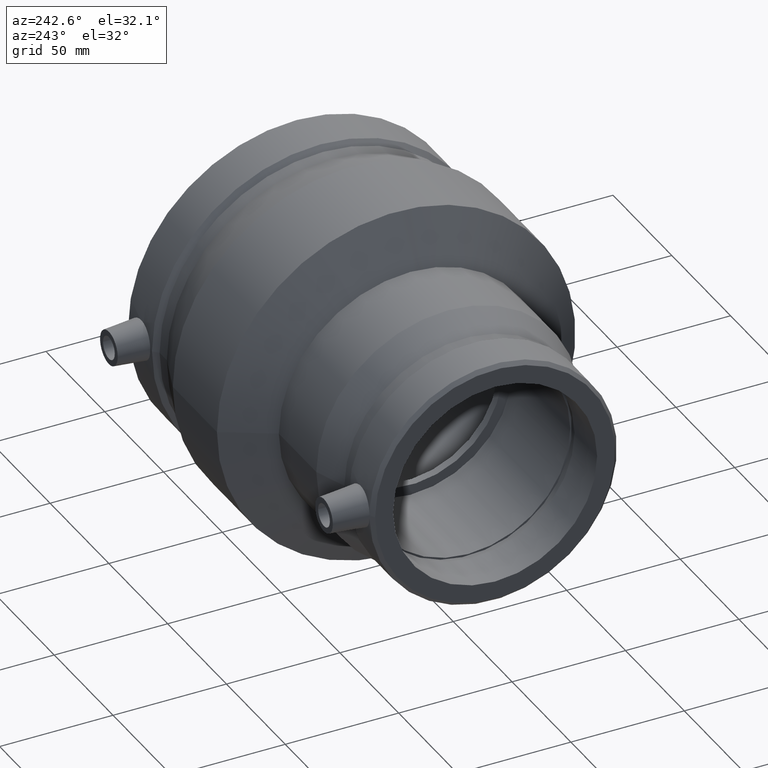
[diagram: clean part render]
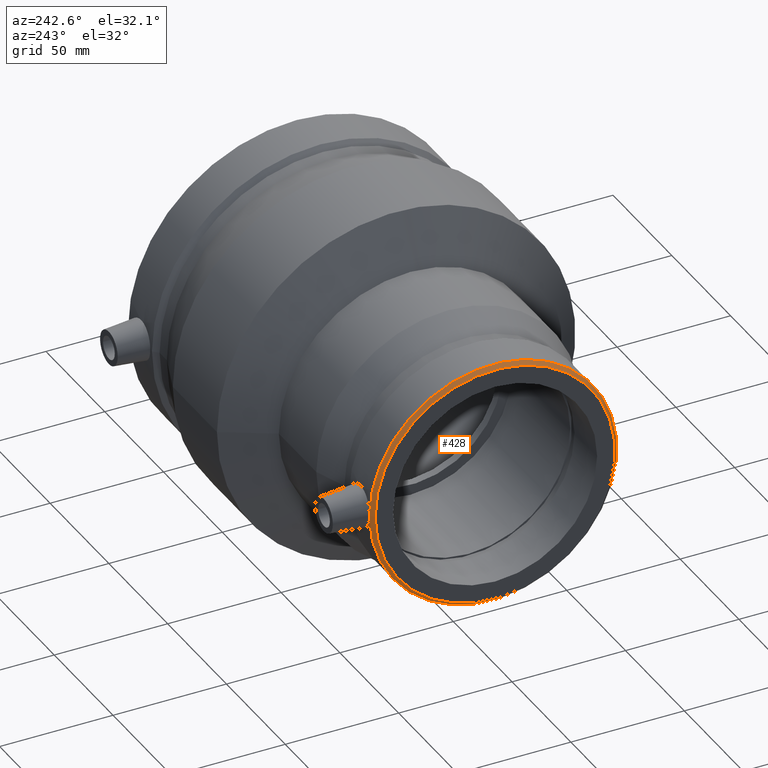
[diagram: same view with one face highlighted and labeled with its STEP entity id]
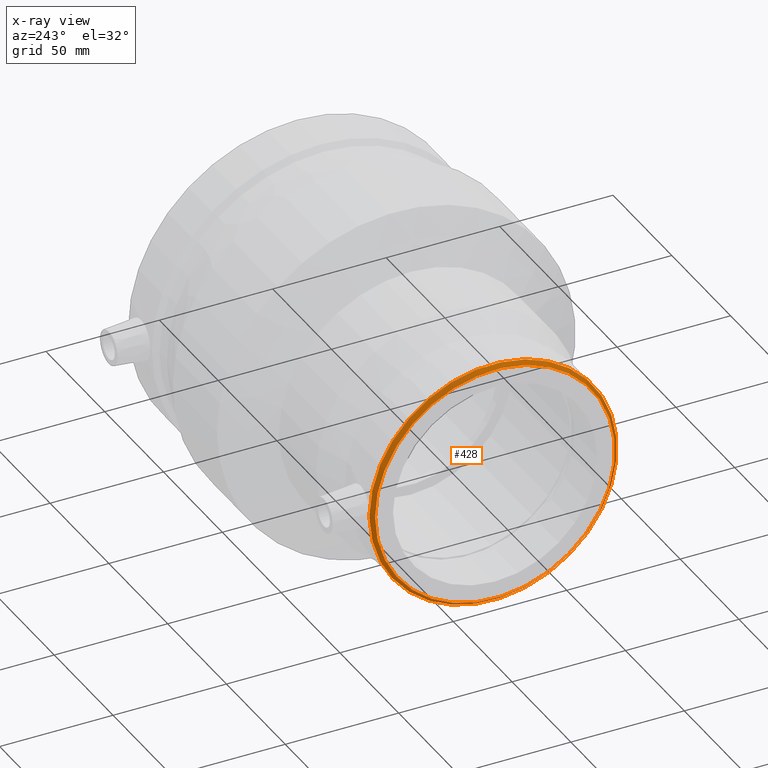
[diagram: x-ray of the same camera — body ghosted, the highlighted face saturated]
A machine part, auxiliary view. The second image highlights one B-rep face of the part: STEP entity #428.
The next image is the same camera in x-ray: the body ghosted, the highlighted face saturated — about 0% of this face is hidden behind the body in this view.
In plain terms, the highlighted conical surface has half-angle 45 deg.
Its self-contained STEP definition (entity closure, byte-faithful):
#16=B_SPLINE_CURVE_WITH_KNOTS('',3,(#755,#756,#757,#758,#759,#760),
 .UNSPECIFIED.,.F.,.F.,(4,2,4),(1.69213413303802,1.78559538917749,1.87905664531697),
 .UNSPECIFIED.);
#23=CONICAL_SURFACE('',#483,53.7022,45.);
#44=FACE_BOUND('',#150,.T.);
#98=FACE_OUTER_BOUND('',#149,.T.);
#149=EDGE_LOOP('',(#348,#349));
#150=EDGE_LOOP('',(#350));
#211=CIRCLE('',#481,52.8844);
#213=CIRCLE('',#484,54.52);
#247=VERTEX_POINT('',#753);
#248=VERTEX_POINT('',#754);
#252=VERTEX_POINT('',#811);
#287=EDGE_CURVE('',#247,#248,#16,.T.);
#293=EDGE_CURVE('',#252,#252,#211,.T.);
#295=EDGE_CURVE('',#247,#248,#213,.T.);
#348=ORIENTED_EDGE('',*,*,#287,.T.);
#349=ORIENTED_EDGE('',*,*,#295,.F.);
#350=ORIENTED_EDGE('',*,*,#293,.T.);
#428=ADVANCED_FACE('',(#98,#44),#23,.T.);
#481=AXIS2_PLACEMENT_3D('',#812,#585,#586);
#483=AXIS2_PLACEMENT_3D('',#815,#589,#590);
#484=AXIS2_PLACEMENT_3D('',#816,#591,#592);
#585=DIRECTION('center_axis',(1.,0.,0.));
#586=DIRECTION('ref_axis',(0.,0.,-1.));
#589=DIRECTION('center_axis',(1.,0.,0.));
#590=DIRECTION('ref_axis',(0.,1.,0.));
#591=DIRECTION('center_axis',(1.,0.,0.));
#592=DIRECTION('ref_axis',(0.,0.,-1.));
#753=CARTESIAN_POINT('',(-83.8644,54.5117976993819,0.945680486033814));
#754=CARTESIAN_POINT('',(-83.8644,54.5117976993819,-0.945680486033814));
#755=CARTESIAN_POINT('Ctrl Pts',(-83.8644,54.5117976993819,0.945680486033813));
#756=CARTESIAN_POINT('Ctrl Pts',(-83.9012146524102,54.4804784713135,0.628588794639262));
#757=CARTESIAN_POINT('Ctrl Pts',(-83.9191111135892,54.4652888864108,0.311537520464915));
#758=CARTESIAN_POINT('Ctrl Pts',(-83.9191111135892,54.4652888864108,-0.311537520464913));
#759=CARTESIAN_POINT('Ctrl Pts',(-83.9012146524102,54.4804784713135,-0.628588794639262));
#760=CARTESIAN_POINT('Ctrl Pts',(-83.8644,54.5117976993819,-0.945680486033813));
#811=CARTESIAN_POINT('',(-85.5,52.8844,0.));
#812=CARTESIAN_POINT('Origin',(-85.5,0.,0.));
#815=CARTESIAN_POINT('Origin',(-84.6822,0.,0.));
#816=CARTESIAN_POINT('Origin',(-83.8644,0.,0.));